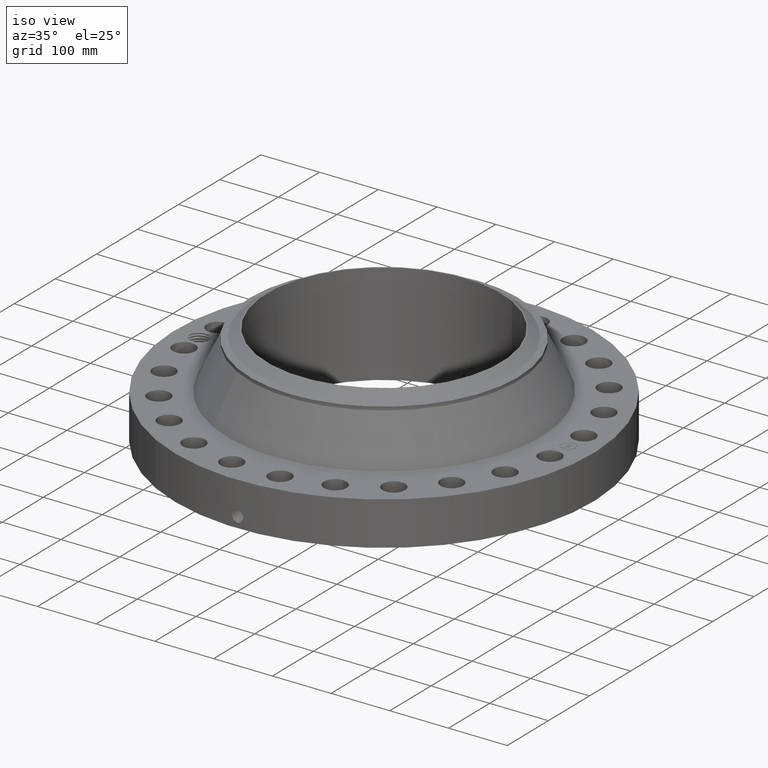
[diagram: clean part render]
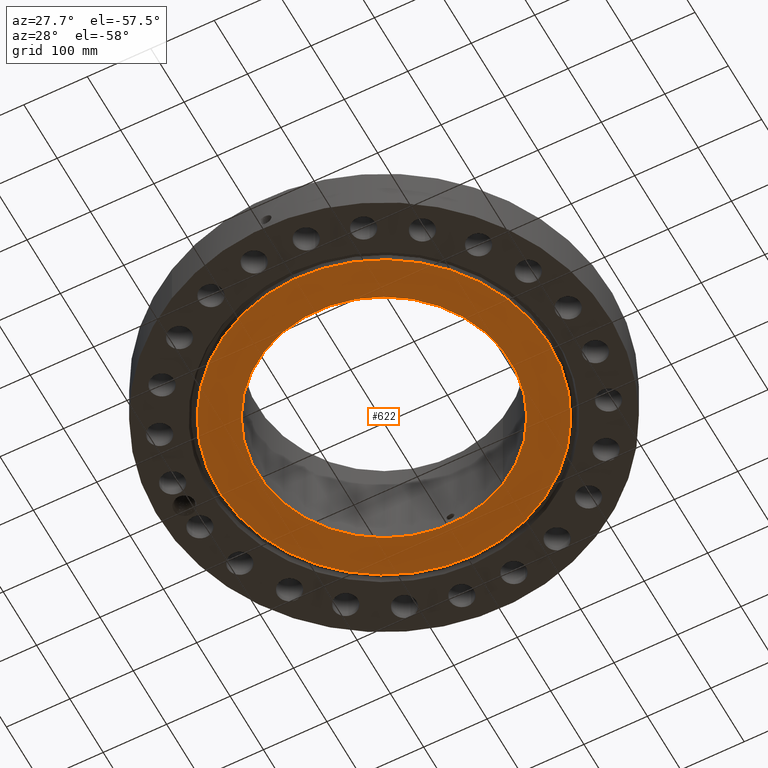
[diagram: tour spotlight — one face highlighted and labeled with its STEP entity id]
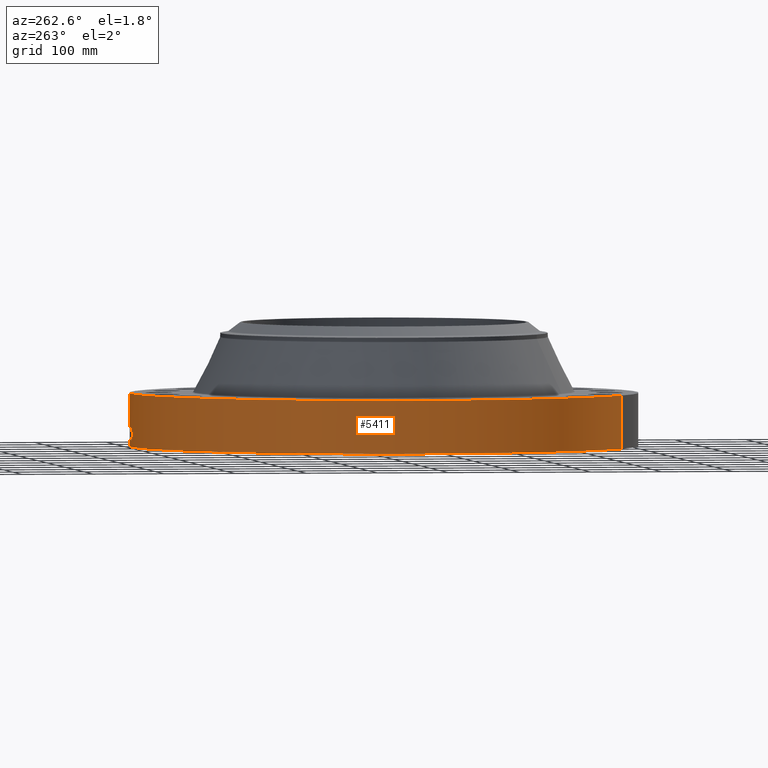
[diagram: tour spotlight — one face highlighted and labeled with its STEP entity id]
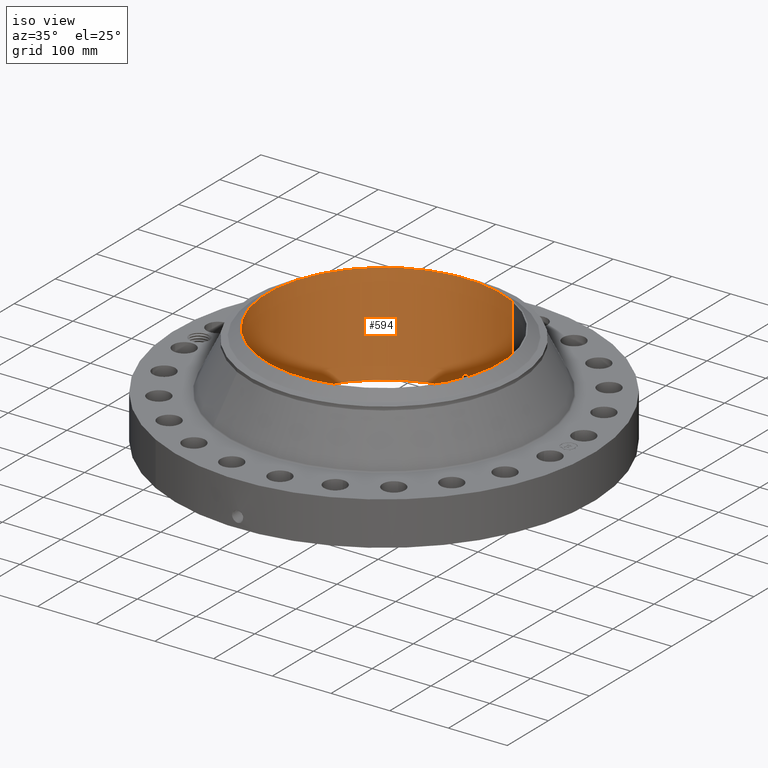
[diagram: tour spotlight — one face highlighted and labeled with its STEP entity id]
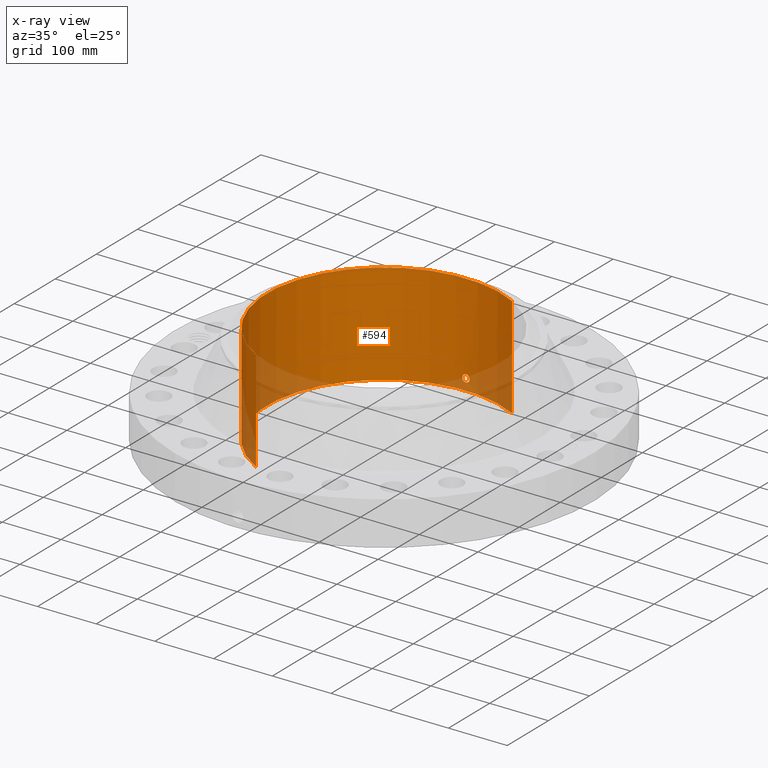
[diagram: x-ray of the same camera — body ghosted, this tour face saturated]
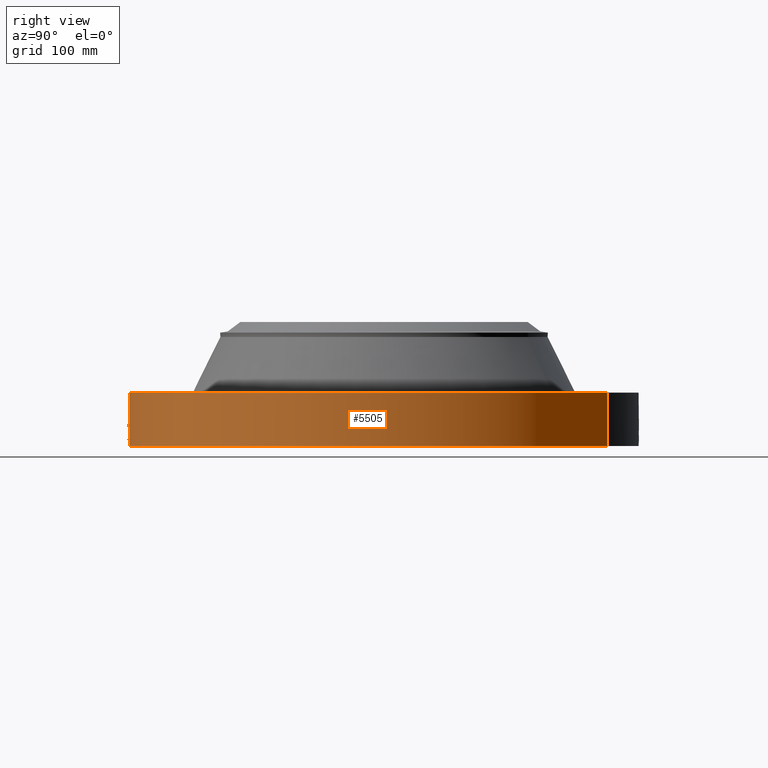
[diagram: tour spotlight — one face highlighted and labeled with its STEP entity id]
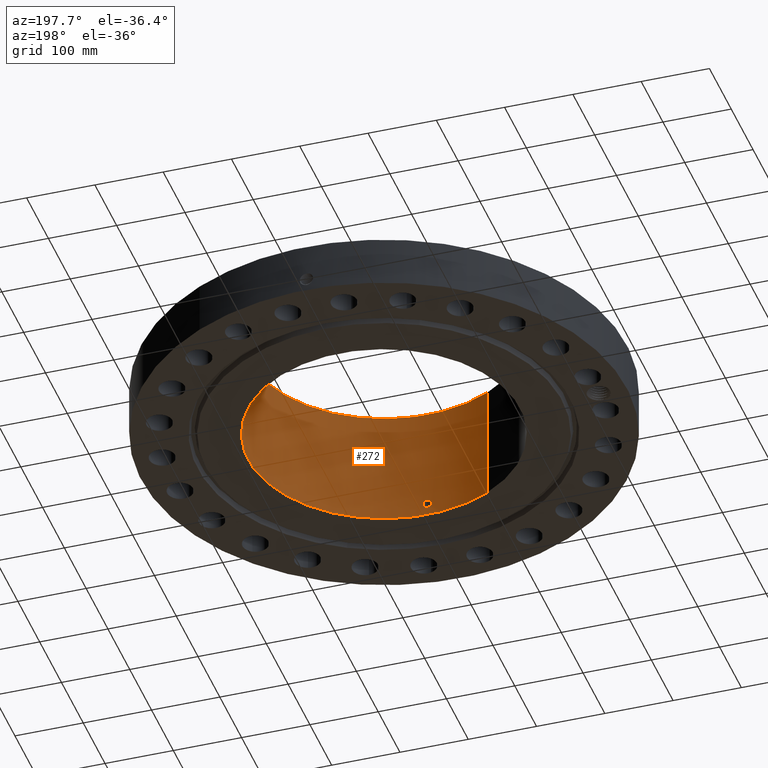
[diagram: tour spotlight — one face highlighted and labeled with its STEP entity id]
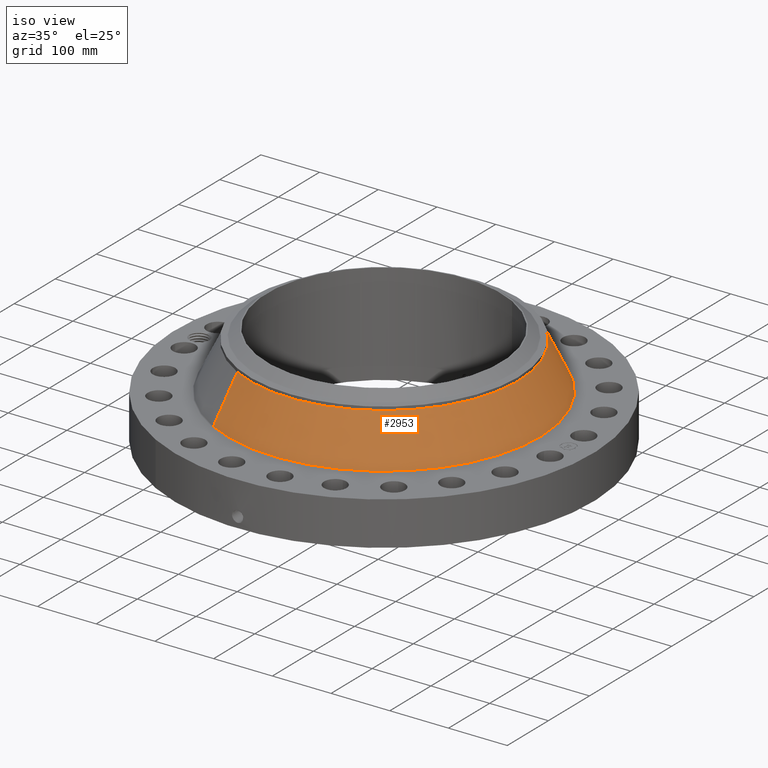
[diagram: tour spotlight — one face highlighted and labeled with its STEP entity id]
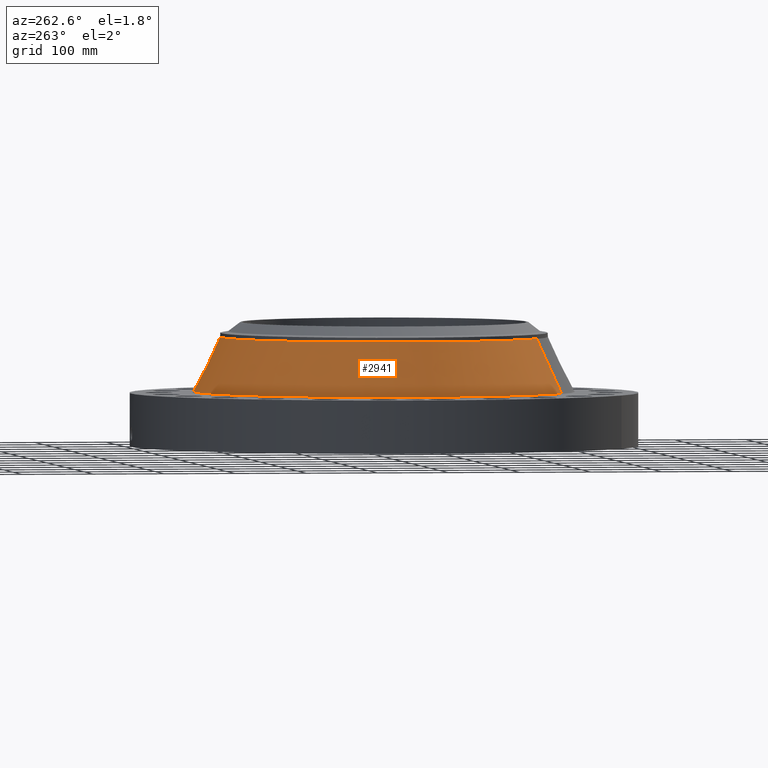
[diagram: tour spotlight — one face highlighted and labeled with its STEP entity id]
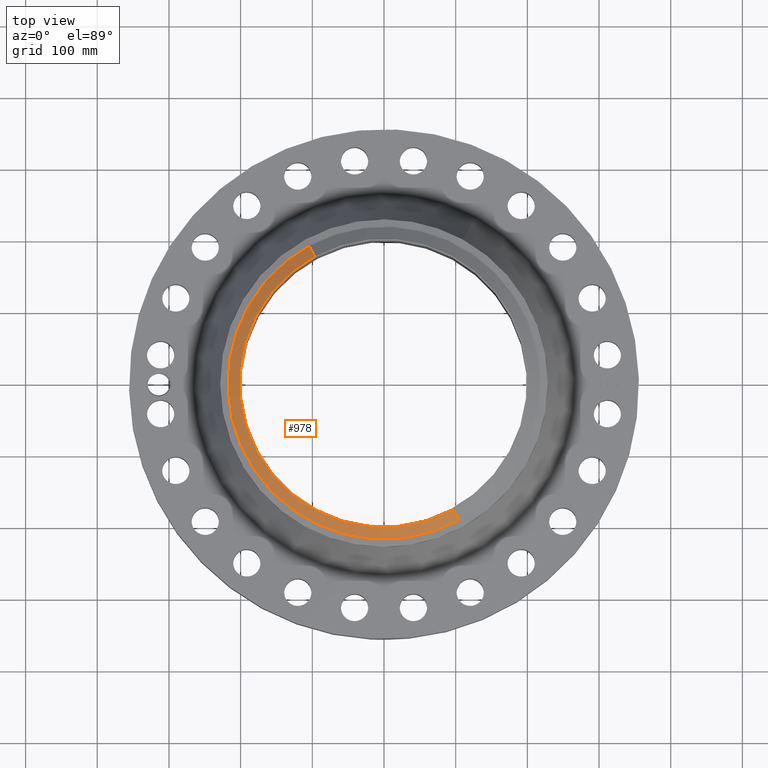
[diagram: tour spotlight — one face highlighted and labeled with its STEP entity id]
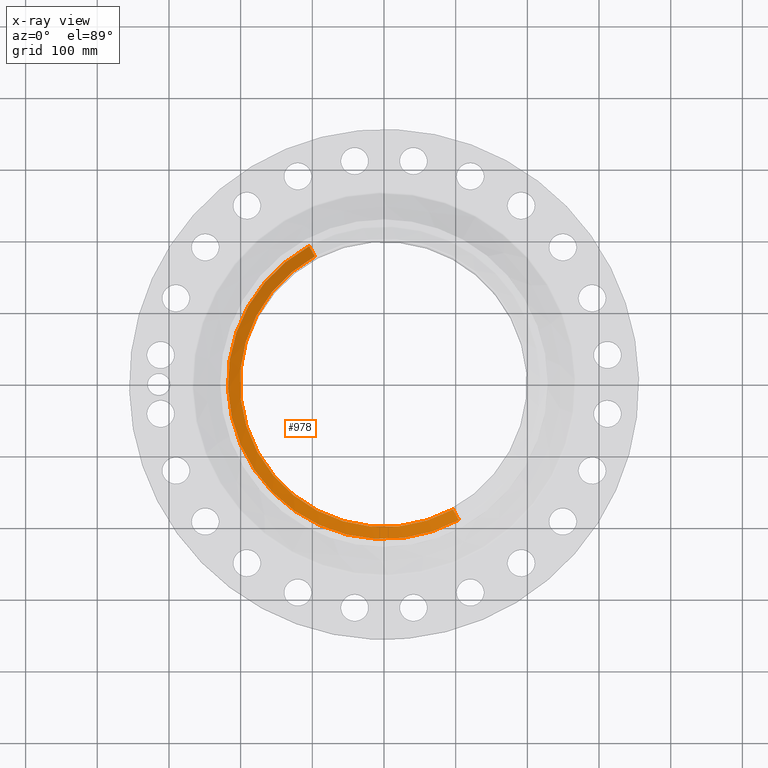
[diagram: x-ray of the same camera — body ghosted, this tour face saturated]
A machine part: a face-by-face anatomy tour. The part has 828 B-rep faces; the first image is the clean iso view, then the 8 largest visible faces are spotlighted one at a time (largest first), each with its STEP entity span.

Face 1 — auxiliary view, entity #622. In plain terms, the highlighted planar face has unit normal (0, 0, -1).
Definition (entity closure, byte-faithful):
#252=AXIS2_PLACEMENT_3D('Circle Axis2P3D',#250,#251,$) ;
#543=AXIS2_PLACEMENT_3D('Circle Axis2P3D',#541,#542,$) ;
#598=AXIS2_PLACEMENT_3D('Plane Axis2P3D',#595,#596,#597) ;
#602=AXIS2_PLACEMENT_3D('Circle Axis2P3D',#600,#601,$) ;
#611=AXIS2_PLACEMENT_3D('Circle Axis2P3D',#609,#610,$) ;
#247=CARTESIAN_POINT('Vertex',(3.76061392483,6.8837576155,-5.31508345647E-014)) ;
#250=CARTESIAN_POINT('Axis2P3D Location',(0.,0.,-5.37103170338E-014)) ;
#254=CARTESIAN_POINT('Vertex',(-3.76061392483,-6.8837576155,-5.31508345647E-014)) ;
#541=CARTESIAN_POINT('Axis2P3D Location',(0.,0.,-5.37103170338E-014)) ;
#595=CARTESIAN_POINT('Axis2P3D Location',(0.,7.84400000003,0.)) ;
#600=CARTESIAN_POINT('Axis2P3D Location',(1.1189649382E-015,0.,0.)) ;
#604=CARTESIAN_POINT('Vertex',(-4.92154286656,9.00882378912,-3.49676543189E-017)) ;
#606=CARTESIAN_POINT('Vertex',(4.92154286656,-9.00882378912,0.)) ;
#609=CARTESIAN_POINT('Axis2P3D Location',(2.23792987641E-015,-1.1189649382E-015,0.)) ;
#251=DIRECTION('Axis2P3D Direction',(0.,0.,-0.0393700787402)) ;
#542=DIRECTION('Axis2P3D Direction',(0.,0.,-0.0393700787402)) ;
#596=DIRECTION('Axis2P3D Direction',(0.,0.,-0.0393700787402)) ;
#597=DIRECTION('Axis2P3D XDirection',(0.0393700787402,0.,0.)) ;
#601=DIRECTION('Axis2P3D Direction',(0.,0.,-0.0393700787402)) ;
#610=DIRECTION('Axis2P3D Direction',(0.,0.,-0.0393700787402)) ;
#615=ORIENTED_EDGE('',*,*,#608,.T.) ;
#616=ORIENTED_EDGE('',*,*,#613,.T.) ;
#619=ORIENTED_EDGE('',*,*,#256,.F.) ;
#620=ORIENTED_EDGE('',*,*,#545,.F.) ;
#621=FACE_BOUND('',#618,.T.) ;
#622=ADVANCED_FACE('PartBody',(#617,#621),#599,.T.) ;
#253=CIRCLE('generated circle',#252,7.84400000003) ;
#544=CIRCLE('generated circle',#543,7.84400000003) ;
#603=CIRCLE('generated circle',#602,10.2655) ;
#612=CIRCLE('generated circle',#611,10.2655) ;
#256=EDGE_CURVE('',#248,#255,#253,.T.) ;
#545=EDGE_CURVE('',#255,#248,#544,.T.) ;
#608=EDGE_CURVE('',#605,#607,#603,.T.) ;
#613=EDGE_CURVE('',#607,#605,#612,.T.) ;
#614=EDGE_LOOP('',(#615,#616)) ;
#618=EDGE_LOOP('',(#619,#620)) ;
#617=FACE_OUTER_BOUND('',#614,.T.) ;
#599=PLANE('',#598) ;
#248=VERTEX_POINT('',#247) ;
#255=VERTEX_POINT('',#254) ;
#605=VERTEX_POINT('',#604) ;
#607=VERTEX_POINT('',#606) ;

Face 2 — auxiliary view, entity #5411. In plain terms, the highlighted cylindrical surface (partial cylindrical patch) has radius 355.6 mm, axis along (0, 0, -1).
Definition (entity closure, byte-faithful):
#3849=AXIS2_PLACEMENT_3D('Circle Axis2P3D',#3847,#3848,$) ;
#4558=AXIS2_PLACEMENT_3D('Circle Axis2P3D',#4556,#4557,$) ;
#5306=AXIS2_PLACEMENT_3D('Cylinder Axis2P3D',#5303,#5304,#5305) ;
#3847=CARTESIAN_POINT('Axis2P3D Location',(0.,0.,0.)) ;
#3851=CARTESIAN_POINT('Vertex',(-6.71195754049,-12.2861558665,1.1189649382E-015)) ;
#3853=CARTESIAN_POINT('Vertex',(6.71195754049,12.2861558665,1.1189649382E-015)) ;
#4551=CARTESIAN_POINT('Vertex',(6.71195754049,12.2861558665,2.93200000001)) ;
#4553=CARTESIAN_POINT('Vertex',(-6.71195754049,-12.2861558665,2.93200000001)) ;
#4556=CARTESIAN_POINT('Axis2P3D Location',(0.,0.,2.93200000001)) ;
#5303=CARTESIAN_POINT('Axis2P3D Location',(0.,0.,3.40600000001)) ;
#5308=CARTESIAN_POINT('Line Origine',(-6.71195754049,-12.2861558665,1.46600000001)) ;
#5313=CARTESIAN_POINT('Line Origine',(6.71195754049,12.2861558665,1.46600000001)) ;
#5325=CARTESIAN_POINT('Control Point',(-0.000716127770021,13.9999999817,1.1041184611)) ;
#5326=CARTESIAN_POINT('Control Point',(-0.0190757983381,13.9999990426,1.10408137441)) ;
#5327=CARTESIAN_POINT('Control Point',(-0.0374322413153,13.9999616996,1.10261237373)) ;
#5328=CARTESIAN_POINT('Control Point',(-0.055563891505,13.9998897373,1.09972937867)) ;
#5329=CARTESIAN_POINT('Vertex',(-0.000715743932358,13.9999999818,1.10411851041)) ;
#5331=CARTESIAN_POINT('Vertex',(-0.0555549451581,13.9998900259,1.09973081964)) ;
#5335=CARTESIAN_POINT('Control Point',(-0.0555548490816,13.9998897731,1.09973026908)) ;
#5336=CARTESIAN_POINT('Control Point',(-0.0958938296652,13.9997296986,1.09526506922)) ;
#5337=CARTESIAN_POINT('Control Point',(-0.13558153614,13.9993911749,1.08345851699)) ;
#5338=CARTESIAN_POINT('Control Point',(-0.172124900836,13.9989418536,1.06510326735)) ;
#5339=CARTESIAN_POINT('Vertex',(-0.172124900836,13.9989418536,1.06510326735)) ;
#5343=CARTESIAN_POINT('Control Point',(-0.0309215004358,13.9999658522,0.341182267607)) ;
#5344=CARTESIAN_POINT('Control Point',(-0.100166394521,13.9998129121,0.349950591882)) ;
#5345=CARTESIAN_POINT('Control Point',(-0.167079203284,13.9992370076,0.374143798892)) ;
#5346=CARTESIAN_POINT('Control Point',(-0.226861916913,13.9983036346,0.412946418718)) ;
#5347=CARTESIAN_POINT('Control Point',(-0.299410362546,13.9968606616,0.486992650629)) ;
#5348=CARTESIAN_POINT('Control Point',(-0.344252863709,13.9957762929,0.577303564864)) ;
#5349=CARTESIAN_POINT('Control Point',(-0.355712949601,13.9954842687,0.60801091681)) ;
#5350=CARTESIAN_POINT('Control Point',(-0.374230289479,13.9950011291,0.67928786997)) ;
#5351=CARTESIAN_POINT('Control Point',(-0.375902039467,13.9949509828,0.752614503321)) ;
#5352=CARTESIAN_POINT('Control Point',(-0.371520179464,13.9950715433,0.793222777658)) ;
#5353=CARTESIAN_POINT('Control Point',(-0.349038361076,13.9956736799,0.885717409818)) ;
#5354=CARTESIAN_POINT('Control Point',(-0.299568268482,13.996842528,0.967115530362)) ;
#5355=CARTESIAN_POINT('Control Point',(-0.263036006055,13.9976212518,1.00806553029)) ;
#5356=CARTESIAN_POINT('Control Point',(-0.219778089764,13.9983559307,1.04116769641)) ;
#5357=CARTESIAN_POINT('Control Point',(-0.172124900836,13.9989418536,1.06510326735)) ;
#5358=CARTESIAN_POINT('Vertex',(-0.0309215004358,13.9999658522,0.341182267607)) ;
#5362=CARTESIAN_POINT('Control Point',(-0.0309215004358,13.9999658522,0.341182267607)) ;
#5363=CARTESIAN_POINT('Control Point',(-0.0206093350718,13.9999886285,0.340873555469)) ;
#5364=CARTESIAN_POINT('Control Point',(-0.0102899336327,14.0000000021,0.340937863188)) ;
#5365=CARTESIAN_POINT('Control Point',(2.72878355401E-006,14.0000000001,0.341374667805)) ;
#5366=CARTESIAN_POINT('Vertex',(2.72878354121E-006,14.0000000001,0.341374667805)) ;
#5370=CARTESIAN_POINT('Control Point',(0.192703589045,13.9986736989,0.39726939377)) ;
#5371=CARTESIAN_POINT('Control Point',(0.149035570211,13.9992748261,0.371955714082)) ;
#5372=CARTESIAN_POINT('Control Point',(0.10112204512,13.9997535108,0.353750407219)) ;
#5373=CARTESIAN_POINT('Control Point',(0.0508078024423,13.9999999902,0.343530755533)) ;
#5374=CARTESIAN_POINT('Control Point',(2.72878355401E-006,14.0000000001,0.341374667805)) ;
#5375=CARTESIAN_POINT('Vertex',(0.192703589045,13.9986736989,0.39726939377)) ;
#5379=CARTESIAN_POINT('Control Point',(0.192703589045,13.9986736989,0.39726939377)) ;
#5380=CARTESIAN_POINT('Control Point',(0.249588141188,13.9978906349,0.430244491957)) ;
#5381=CARTESIAN_POINT('Control Point',(0.299738781431,13.9969112714,0.474526544711)) ;
#5382=CARTESIAN_POINT('Control Point',(0.340016084214,13.9959144375,0.528593013561)) ;
#5383=CARTESIAN_POINT('Control Point',(0.384401903694,13.9947324549,0.626721002343)) ;
#5384=CARTESIAN_POINT('Control Point',(0.393085692121,13.9944790205,0.732012567468)) ;
#5385=CARTESIAN_POINT('Control Point',(0.391005823831,13.9945390528,0.772144914978)) ;
#5386=CARTESIAN_POINT('Control Point',(0.376915952198,13.9949387529,0.84701494525)) ;
#5387=CARTESIAN_POINT('Control Point',(0.344864409284,13.995765604,0.915422587374)) ;
#5388=CARTESIAN_POINT('Control Point',(0.325823254781,13.9962322051,0.945842824164)) ;
#5389=CARTESIAN_POINT('Control Point',(0.264021728227,13.9976173448,1.02245044825)) ;
#5390=CARTESIAN_POINT('Control Point',(0.180761909131,13.998996639,1.07554895628)) ;
#5391=CARTESIAN_POINT('Control Point',(0.121808147223,13.9996739848,1.0976552982)) ;
#5392=CARTESIAN_POINT('Control Point',(0.0604215643591,14.0000001117,1.1071166251)) ;
#5393=CARTESIAN_POINT('Control Point',(-2.58579355713E-005,14.,1.1041529843)) ;
#5394=CARTESIAN_POINT('Vertex',(-2.58579355465E-005,14.,1.1041529843)) ;
#5398=CARTESIAN_POINT('Control Point',(-0.000715743922712,13.9999999818,1.10411851039)) ;
#5399=CARTESIAN_POINT('Control Point',(-0.000370825420103,13.9999999994,1.1041360711)) ;
#5400=CARTESIAN_POINT('Control Point',(-2.58579407E-005,14.,1.1041529843)) ;
#3848=DIRECTION('Axis2P3D Direction',(0.,0.,-0.0393700787402)) ;
#4557=DIRECTION('Axis2P3D Direction',(0.,0.,-0.0393700787402)) ;
#5304=DIRECTION('Axis2P3D Direction',(0.,0.,-0.0393700787402)) ;
#5305=DIRECTION('Axis2P3D XDirection',(0.0188750212049,0.0345504945626,0.)) ;
#5309=DIRECTION('Vector Direction',(0.,0.,-0.0393700787402)) ;
#5314=DIRECTION('Vector Direction',(0.,0.,-0.0393700787402)) ;
#5310=VECTOR('Line Direction',#5309,0.0393700787402) ;
#5315=VECTOR('Line Direction',#5314,0.0393700787402) ;
#5319=ORIENTED_EDGE('',*,*,#3855,.F.) ;
#5320=ORIENTED_EDGE('',*,*,#5312,.T.) ;
#5321=ORIENTED_EDGE('',*,*,#4560,.T.) ;
#5322=ORIENTED_EDGE('',*,*,#5317,.F.) ;
#5403=ORIENTED_EDGE('',*,*,#5333,.T.) ;
#5404=ORIENTED_EDGE('',*,*,#5341,.T.) ;
#5405=ORIENTED_EDGE('',*,*,#5360,.F.) ;
#5406=ORIENTED_EDGE('',*,*,#5368,.T.) ;
#5407=ORIENTED_EDGE('',*,*,#5377,.F.) ;
#5408=ORIENTED_EDGE('',*,*,#5396,.T.) ;
#5409=ORIENTED_EDGE('',*,*,#5401,.F.) ;
#5410=FACE_BOUND('',#5402,.T.) ;
#5411=ADVANCED_FACE('PartBody',(#5323,#5410),#5307,.T.) ;
#5324=B_SPLINE_CURVE_WITH_KNOTS('',3,(#5325,#5326,#5327,#5328),.UNSPECIFIED.,.F.,.U.,(4,4),(34.6165208605,36.6533523258),.UNSPECIFIED.) ;
#5334=B_SPLINE_CURVE_WITH_KNOTS('',3,(#5335,#5336,#5337,#5338),.UNSPECIFIED.,.F.,.U.,(4,4),(0.,4.56032481919),.UNSPECIFIED.) ;
#5342=B_SPLINE_CURVE_WITH_KNOTS('',5,(#5343,#5344,#5345,#5346,#5347,#5348,#5349,#5350,#5351,#5352,#5353,#5354,#5355,#5356,#5357),.UNSPECIFIED.,.F.,.U.,(6,3,3,3,6),(0.,12.1301119272,17.9857306517,25.3556969011,35.2669365049),.UNSPECIFIED.) ;
#5361=B_SPLINE_CURVE_WITH_KNOTS('',3,(#5362,#5363,#5364,#5365),.UNSPECIFIED.,.F.,.U.,(4,4),(0.,1.0757036039),.UNSPECIFIED.) ;
#5369=B_SPLINE_CURVE_WITH_KNOTS('',4,(#5370,#5371,#5372,#5373,#5374),.UNSPECIFIED.,.F.,.U.,(5,5),(0.,7.0796325345),.UNSPECIFIED.) ;
#5378=B_SPLINE_CURVE_WITH_KNOTS('',5,(#5379,#5380,#5381,#5382,#5383,#5384,#5385,#5386,#5387,#5388,#5389,#5390,#5391,#5392,#5393),.UNSPECIFIED.,.F.,.U.,(6,3,3,3,6),(0.,11.5279364619,18.5943609841,25.0081378935,36.3070156025),.UNSPECIFIED.) ;
#5397=B_SPLINE_CURVE_WITH_KNOTS('',2,(#5398,#5399,#5400),.UNSPECIFIED.,.F.,.U.,(3,3),(1.02463481524,1.05042744884),.UNSPECIFIED.) ;
#3850=CIRCLE('generated circle',#3849,14.0000000001) ;
#4559=CIRCLE('generated circle',#4558,14.0000000001) ;
#5307=CYLINDRICAL_SURFACE('generated cylinder',#5306,14.0000000001) ;
#3855=EDGE_CURVE('',#3852,#3854,#3850,.T.) ;
#4560=EDGE_CURVE('',#4554,#4552,#4559,.T.) ;
#5312=EDGE_CURVE('',#3852,#4554,#5311,.F.) ;
#5317=EDGE_CURVE('',#3854,#4552,#5316,.F.) ;
#5333=EDGE_CURVE('',#5330,#5332,#5324,.T.) ;
#5341=EDGE_CURVE('',#5332,#5340,#5334,.T.) ;
#5360=EDGE_CURVE('',#5359,#5340,#5342,.T.) ;
#5368=EDGE_CURVE('',#5359,#5367,#5361,.T.) ;
#5377=EDGE_CURVE('',#5376,#5367,#5369,.T.) ;
#5396=EDGE_CURVE('',#5376,#5395,#5378,.T.) ;
#5401=EDGE_CURVE('',#5330,#5395,#5397,.T.) ;
#5318=EDGE_LOOP('',(#5319,#5320,#5321,#5322)) ;
#5402=EDGE_LOOP('',(#5403,#5404,#5405,#5406,#5407,#5408,#5409)) ;
#5323=FACE_OUTER_BOUND('',#5318,.T.) ;
#5311=LINE('Line',#5308,#5310) ;
#5316=LINE('Line',#5313,#5315) ;
#3852=VERTEX_POINT('',#3851) ;
#3854=VERTEX_POINT('',#3853) ;
#4552=VERTEX_POINT('',#4551) ;
#4554=VERTEX_POINT('',#4553) ;
#5330=VERTEX_POINT('',#5329) ;
#5332=VERTEX_POINT('',#5331) ;
#5340=VERTEX_POINT('',#5339) ;
#5359=VERTEX_POINT('',#5358) ;
#5367=VERTEX_POINT('',#5366) ;
#5376=VERTEX_POINT('',#5375) ;
#5395=VERTEX_POINT('',#5394) ;

Face 3 — iso view, entity #594. An x-ray twin of the same camera follows (body ghosted, this face saturated) — the face is partly hidden behind the body. In plain terms, the highlighted cylindrical surface (partial cylindrical patch) has radius 199.238 mm, axis along (0, 0, -1).
Definition (entity closure, byte-faithful):
#232=AXIS2_PLACEMENT_3D('Cylinder Axis2P3D',#229,#230,#231) ;
#533=AXIS2_PLACEMENT_3D('Circle Axis2P3D',#531,#532,$) ;
#543=AXIS2_PLACEMENT_3D('Circle Axis2P3D',#541,#542,$) ;
#229=CARTESIAN_POINT('Axis2P3D Location',(0.,0.,3.40600000001)) ;
#238=CARTESIAN_POINT('Vertex',(3.76061392483,6.8837576155,6.81200000003)) ;
#240=CARTESIAN_POINT('Vertex',(-3.76061392483,-6.8837576155,6.81200000003)) ;
#243=CARTESIAN_POINT('Line Origine',(3.76061392483,6.8837576155,3.40600000001)) ;
#247=CARTESIAN_POINT('Vertex',(3.76061392483,6.8837576155,-5.31508345647E-014)) ;
#254=CARTESIAN_POINT('Vertex',(-3.76061392483,-6.8837576155,-5.31508345647E-014)) ;
#257=CARTESIAN_POINT('Line Origine',(-3.76061392483,-6.8837576155,3.40600000001)) ;
#531=CARTESIAN_POINT('Axis2P3D Location',(0.,0.,6.81200000003)) ;
#541=CARTESIAN_POINT('Axis2P3D Location',(0.,0.,-5.37103170338E-014)) ;
#553=CARTESIAN_POINT('Control Point',(0.219395640473,7.84093116622,0.869856384655)) ;
#554=CARTESIAN_POINT('Control Point',(0.194443281247,7.84162935356,0.915531371847)) ;
#555=CARTESIAN_POINT('Control Point',(0.157606371525,7.84256074456,0.954710148822)) ;
#556=CARTESIAN_POINT('Control Point',(0.111110848151,7.84346651512,0.983241898809)) ;
#557=CARTESIAN_POINT('Control Point',(0.0336769109748,7.8441871941,1.00588206665)) ;
#558=CARTESIAN_POINT('Control Point',(-0.0446672312369,7.84393819326,0.998056899284)) ;
#559=CARTESIAN_POINT('Control Point',(-0.0702959035817,7.84374488933,0.992044969884)) ;
#560=CARTESIAN_POINT('Control Point',(-0.143950689609,7.84289063034,0.964215402356)) ;
#561=CARTESIAN_POINT('Control Point',(-0.20323737664,7.84149615471,0.90950521058)) ;
#562=CARTESIAN_POINT('Control Point',(-0.232204167424,7.840581429,0.863269241624)) ;
#563=CARTESIAN_POINT('Control Point',(-0.255839574978,7.83982932625,0.785121259903)) ;
#564=CARTESIAN_POINT('Control Point',(-0.24828443845,7.84006954017,0.705753536373)) ;
#565=CARTESIAN_POINT('Control Point',(-0.242050622479,7.84027062564,0.679188391268)) ;
#566=CARTESIAN_POINT('Control Point',(-0.23231649396,7.84056963022,0.653795079013)) ;
#567=CARTESIAN_POINT('Control Point',(-0.219395640473,7.84093116622,0.630143615351)) ;
#568=CARTESIAN_POINT('Vertex',(0.219395640473,7.84093116622,0.869856384655)) ;
#570=CARTESIAN_POINT('Vertex',(-0.219395640473,7.84093116622,0.630143615351)) ;
#574=CARTESIAN_POINT('Control Point',(-0.219395640474,7.84093116622,0.630143615351)) ;
#575=CARTESIAN_POINT('Control Point',(-0.194443281254,7.84162935356,0.584468628172)) ;
#576=CARTESIAN_POINT('Control Point',(-0.157606371546,7.84256074456,0.545289851207)) ;
#577=CARTESIAN_POINT('Control Point',(-0.111110848118,7.84346651512,0.516758101187)) ;
#578=CARTESIAN_POINT('Control Point',(-0.0336769109438,7.8441871941,0.494117933358)) ;
#579=CARTESIAN_POINT('Control Point',(0.0446672312653,7.84393819326,0.501943100725)) ;
#580=CARTESIAN_POINT('Control Point',(0.070295903562,7.84374488933,0.507955030114)) ;
#581=CARTESIAN_POINT('Control Point',(0.143950689564,7.84289063034,0.535784597629)) ;
#582=CARTESIAN_POINT('Control Point',(0.203237376582,7.84149615471,0.590494789372)) ;
#583=CARTESIAN_POINT('Control Point',(0.23220416745,7.840581429,0.636730758464)) ;
#584=CARTESIAN_POINT('Control Point',(0.255839574974,7.83982932625,0.714878740146)) ;
#585=CARTESIAN_POINT('Control Point',(0.248284438449,7.84006954017,0.794246463636)) ;
#586=CARTESIAN_POINT('Control Point',(0.242050622479,7.84027062564,0.82081160874)) ;
#587=CARTESIAN_POINT('Control Point',(0.23231649396,7.84056963022,0.846204920994)) ;
#588=CARTESIAN_POINT('Control Point',(0.219395640473,7.84093116622,0.869856384655)) ;
#230=DIRECTION('Axis2P3D Direction',(0.,0.,-0.0393700787402)) ;
#231=DIRECTION('Axis2P3D XDirection',(-0.0188750212049,-0.0345504945626,0.)) ;
#244=DIRECTION('Vector Direction',(0.,0.,-0.0393700787402)) ;
#258=DIRECTION('Vector Direction',(0.,0.,-0.0393700787402)) ;
#532=DIRECTION('Axis2P3D Direction',(0.,0.,-0.0393700787402)) ;
#542=DIRECTION('Axis2P3D Direction',(0.,0.,-0.0393700787402)) ;
#245=VECTOR('Line Direction',#244,0.0393700787402) ;
#259=VECTOR('Line Direction',#258,0.0393700787402) ;
#547=ORIENTED_EDGE('',*,*,#535,.F.) ;
#548=ORIENTED_EDGE('',*,*,#261,.T.) ;
#549=ORIENTED_EDGE('',*,*,#545,.T.) ;
#550=ORIENTED_EDGE('',*,*,#249,.F.) ;
#591=ORIENTED_EDGE('',*,*,#572,.F.) ;
#592=ORIENTED_EDGE('',*,*,#589,.F.) ;
#593=FACE_BOUND('',#590,.T.) ;
#594=ADVANCED_FACE('PartBody',(#551,#593),#233,.F.) ;
#552=B_SPLINE_CURVE_WITH_KNOTS('',5,(#553,#554,#555,#556,#557,#558,#559,#560,#561,#562,#563,#564,#565,#566,#567),.UNSPECIFIED.,.F.,.U.,(6,3,3,3,6),(0.,9.34863580346,14.0227685147,23.3727984382,28.213717584),.UNSPECIFIED.) ;
#573=B_SPLINE_CURVE_WITH_KNOTS('',5,(#574,#575,#576,#577,#578,#579,#580,#581,#582,#583,#584,#585,#586,#587,#588),.UNSPECIFIED.,.F.,.U.,(6,3,3,3,6),(0.,9.34863580076,14.0227685142,23.3727984305,28.2137175763),.UNSPECIFIED.) ;
#534=CIRCLE('generated circle',#533,7.84400000003) ;
#544=CIRCLE('generated circle',#543,7.84400000003) ;
#233=CYLINDRICAL_SURFACE('generated cylinder',#232,7.84400000003) ;
#249=EDGE_CURVE('',#239,#248,#246,.T.) ;
#261=EDGE_CURVE('',#241,#255,#260,.T.) ;
#535=EDGE_CURVE('',#241,#239,#534,.T.) ;
#545=EDGE_CURVE('',#255,#248,#544,.T.) ;
#572=EDGE_CURVE('',#569,#571,#552,.T.) ;
#589=EDGE_CURVE('',#571,#569,#573,.T.) ;
#546=EDGE_LOOP('',(#547,#548,#549,#550)) ;
#590=EDGE_LOOP('',(#591,#592)) ;
#551=FACE_OUTER_BOUND('',#546,.T.) ;
#246=LINE('Line',#243,#245) ;
#260=LINE('Line',#257,#259) ;
#239=VERTEX_POINT('',#238) ;
#241=VERTEX_POINT('',#240) ;
#248=VERTEX_POINT('',#247) ;
#255=VERTEX_POINT('',#254) ;
#569=VERTEX_POINT('',#568) ;
#571=VERTEX_POINT('',#570) ;

Face 4 — right view, entity #5505. In plain terms, the highlighted cylindrical surface (partial cylindrical patch) has radius 355.6 mm, axis along (0, 0, -1).
Definition (entity closure, byte-faithful):
#3858=AXIS2_PLACEMENT_3D('Circle Axis2P3D',#3856,#3857,$) ;
#4549=AXIS2_PLACEMENT_3D('Circle Axis2P3D',#4547,#4548,$) ;
#5306=AXIS2_PLACEMENT_3D('Cylinder Axis2P3D',#5303,#5304,#5305) ;
#3851=CARTESIAN_POINT('Vertex',(-6.71195754049,-12.2861558665,1.1189649382E-015)) ;
#3853=CARTESIAN_POINT('Vertex',(6.71195754049,12.2861558665,1.1189649382E-015)) ;
#3856=CARTESIAN_POINT('Axis2P3D Location',(0.,0.,0.)) ;
#4547=CARTESIAN_POINT('Axis2P3D Location',(0.,0.,2.93200000001)) ;
#4551=CARTESIAN_POINT('Vertex',(6.71195754049,12.2861558665,2.93200000001)) ;
#4553=CARTESIAN_POINT('Vertex',(-6.71195754049,-12.2861558665,2.93200000001)) ;
#5303=CARTESIAN_POINT('Axis2P3D Location',(0.,0.,3.40600000001)) ;
#5308=CARTESIAN_POINT('Line Origine',(-6.71195754049,-12.2861558665,1.46600000001)) ;
#5313=CARTESIAN_POINT('Line Origine',(6.71195754049,12.2861558665,1.46600000001)) ;
#5419=CARTESIAN_POINT('Control Point',(0.000716127770044,-13.9999999817,1.1041184611)) ;
#5420=CARTESIAN_POINT('Control Point',(0.0190757983388,-13.9999990426,1.10408137441)) ;
#5421=CARTESIAN_POINT('Control Point',(0.0374322413167,-13.9999616996,1.10261237373)) ;
#5422=CARTESIAN_POINT('Control Point',(0.0555638915056,-13.9998897373,1.09972937867)) ;
#5423=CARTESIAN_POINT('Vertex',(0.000715743932356,-13.9999999818,1.10411851041)) ;
#5425=CARTESIAN_POINT('Vertex',(0.0555549451581,-13.9998900259,1.09973081964)) ;
#5429=CARTESIAN_POINT('Control Point',(0.0555548490815,-13.9998897731,1.09973026908)) ;
#5430=CARTESIAN_POINT('Control Point',(0.0958938296584,-13.9997296986,1.09526506922)) ;
#5431=CARTESIAN_POINT('Control Point',(0.135581536146,-13.9993911749,1.08345851699)) ;
#5432=CARTESIAN_POINT('Control Point',(0.172124900836,-13.9989418536,1.06510326735)) ;
#5433=CARTESIAN_POINT('Vertex',(0.172124900836,-13.9989418536,1.06510326735)) ;
#5437=CARTESIAN_POINT('Control Point',(0.0309215004358,-13.9999658522,0.341182267607)) ;
#5438=CARTESIAN_POINT('Control Point',(0.1001663945,-13.9998129121,0.34995059188)) ;
#5439=CARTESIAN_POINT('Control Point',(0.167079203243,-13.9992370076,0.374143798871)) ;
#5440=CARTESIAN_POINT('Control Point',(0.226861917017,-13.9983036346,0.41294641881)) ;
#5441=CARTESIAN_POINT('Control Point',(0.299410362615,-13.9968606616,0.486992650724)) ;
#5442=CARTESIAN_POINT('Control Point',(0.344252863745,-13.9957762929,0.577303564952)) ;
#5443=CARTESIAN_POINT('Control Point',(0.35571294963,-13.9954842687,0.608010916899)) ;
#5444=CARTESIAN_POINT('Control Point',(0.374230289492,-13.9950011291,0.679287870065)) ;
#5445=CARTESIAN_POINT('Control Point',(0.375902039462,-13.9949509828,0.752614503417)) ;
#5446=CARTESIAN_POINT('Control Point',(0.371520179449,-13.9950715433,0.793222777749)) ;
#5447=CARTESIAN_POINT('Control Point',(0.349038361039,-13.9956736799,0.885717409904)) ;
#5448=CARTESIAN_POINT('Control Point',(0.299568268425,-13.996842528,0.967115530438)) ;
#5449=CARTESIAN_POINT('Control Point',(0.263036006056,-13.9976212518,1.00806553029)) ;
#5450=CARTESIAN_POINT('Control Point',(0.219778089765,-13.9983559307,1.04116769641)) ;
#5451=CARTESIAN_POINT('Control Point',(0.172124900836,-13.9989418536,1.06510326735)) ;
#5452=CARTESIAN_POINT('Vertex',(0.0309215004358,-13.9999658522,0.341182267607)) ;
#5456=CARTESIAN_POINT('Control Point',(0.0309215004358,-13.9999658522,0.341182267607)) ;
#5457=CARTESIAN_POINT('Control Point',(0.0206093350718,-13.9999886285,0.340873555469)) ;
#5458=CARTESIAN_POINT('Control Point',(0.0102899336327,-14.0000000021,0.340937863188)) ;
#5459=CARTESIAN_POINT('Control Point',(-2.72878356816E-006,-14.0000000001,0.341374667805)) ;
#5460=CARTESIAN_POINT('Vertex',(-2.72878354299E-006,-14.0000000001,0.341374667805)) ;
#5464=CARTESIAN_POINT('Control Point',(-0.192703589045,-13.9986736989,0.39726939377)) ;
#5465=CARTESIAN_POINT('Control Point',(-0.149035570211,-13.9992748261,0.371955714082)) ;
#5466=CARTESIAN_POINT('Control Point',(-0.10112204512,-13.9997535108,0.35375040722)) ;
#5467=CARTESIAN_POINT('Control Point',(-0.0508078024423,-13.9999999902,0.343530755533)) ;
#5468=CARTESIAN_POINT('Control Point',(-2.72878354327E-006,-14.0000000001,0.341374667805)) ;
#5469=CARTESIAN_POINT('Vertex',(-0.192703589045,-13.9986736989,0.39726939377)) ;
#5473=CARTESIAN_POINT('Control Point',(-0.192703589045,-13.9986736989,0.39726939377)) ;
#5474=CARTESIAN_POINT('Control Point',(-0.24958814117,-13.9978906349,0.430244491947)) ;
#5475=CARTESIAN_POINT('Control Point',(-0.2997387814,-13.9969112714,0.474526544684)) ;
#5476=CARTESIAN_POINT('Control Point',(-0.340016084229,-13.9959144375,0.528593013595)) ;
#5477=CARTESIAN_POINT('Control Point',(-0.384401903664,-13.9947324549,0.626721002292)) ;
#5478=CARTESIAN_POINT('Control Point',(-0.393085692109,-13.9944790205,0.73201256732)) ;
#5479=CARTESIAN_POINT('Control Point',(-0.391005823805,-13.9945390528,0.772144915115)) ;
#5480=CARTESIAN_POINT('Control Point',(-0.376915952154,-13.9949387529,0.847014945386)) ;
#5481=CARTESIAN_POINT('Control Point',(-0.344864409222,-13.995765604,0.915422587508)) ;
#5482=CARTESIAN_POINT('Control Point',(-0.325823254877,-13.9962322051,0.945842824043)) ;
#5483=CARTESIAN_POINT('Control Point',(-0.264021728287,-13.9976173448,1.02245044822)) ;
#5484=CARTESIAN_POINT('Control Point',(-0.180761909115,-13.998996639,1.07554895629)) ;
#5485=CARTESIAN_POINT('Control Point',(-0.121808147245,-13.9996739848,1.0976552982)) ;
#5486=CARTESIAN_POINT('Control Point',(-0.0604215643699,-14.0000001117,1.1071166251)) ;
#5487=CARTESIAN_POINT('Control Point',(2.58579355447E-005,-14.,1.1041529843)) ;
#5488=CARTESIAN_POINT('Vertex',(2.58579355449E-005,-14.,1.1041529843)) ;
#5492=CARTESIAN_POINT('Control Point',(0.000715743922683,-13.9999999818,1.10411851039)) ;
#5493=CARTESIAN_POINT('Control Point',(0.000370825420083,-13.9999999994,1.1041360711)) ;
#5494=CARTESIAN_POINT('Control Point',(2.58579406887E-005,-14.,1.1041529843)) ;
#3857=DIRECTION('Axis2P3D Direction',(0.,0.,-0.0393700787402)) ;
#4548=DIRECTION('Axis2P3D Direction',(0.,0.,-0.0393700787402)) ;
#5304=DIRECTION('Axis2P3D Direction',(0.,0.,-0.0393700787402)) ;
#5305=DIRECTION('Axis2P3D XDirection',(0.0188750212049,0.0345504945626,0.)) ;
#5309=DIRECTION('Vector Direction',(0.,0.,-0.0393700787402)) ;
#5314=DIRECTION('Vector Direction',(0.,0.,-0.0393700787402)) ;
#5310=VECTOR('Line Direction',#5309,0.0393700787402) ;
#5315=VECTOR('Line Direction',#5314,0.0393700787402) ;
#5413=ORIENTED_EDGE('',*,*,#3860,.F.) ;
#5414=ORIENTED_EDGE('',*,*,#5317,.T.) ;
#5415=ORIENTED_EDGE('',*,*,#4555,.T.) ;
#5416=ORIENTED_EDGE('',*,*,#5312,.F.) ;
#5497=ORIENTED_EDGE('',*,*,#5427,.T.) ;
#5498=ORIENTED_EDGE('',*,*,#5435,.T.) ;
#5499=ORIENTED_EDGE('',*,*,#5454,.F.) ;
#5500=ORIENTED_EDGE('',*,*,#5462,.T.) ;
#5501=ORIENTED_EDGE('',*,*,#5471,.F.) ;
#5502=ORIENTED_EDGE('',*,*,#5490,.T.) ;
#5503=ORIENTED_EDGE('',*,*,#5495,.F.) ;
#5504=FACE_BOUND('',#5496,.T.) ;
#5505=ADVANCED_FACE('PartBody',(#5417,#5504),#5307,.T.) ;
#5418=B_SPLINE_CURVE_WITH_KNOTS('',3,(#5419,#5420,#5421,#5422),.UNSPECIFIED.,.F.,.U.,(4,4),(34.6165208838,36.6533523492),.UNSPECIFIED.) ;
#5428=B_SPLINE_CURVE_WITH_KNOTS('',3,(#5429,#5430,#5431,#5432),.UNSPECIFIED.,.F.,.U.,(4,4),(0.,4.56032481842),.UNSPECIFIED.) ;
#5436=B_SPLINE_CURVE_WITH_KNOTS('',5,(#5437,#5438,#5439,#5440,#5441,#5442,#5443,#5444,#5445,#5446,#5447,#5448,#5449,#5450,#5451),.UNSPECIFIED.,.F.,.U.,(6,3,3,3,6),(0.,12.1301119235,17.985730648,25.3556968976,35.2669365016),.UNSPECIFIED.) ;
#5455=B_SPLINE_CURVE_WITH_KNOTS('',3,(#5456,#5457,#5458,#5459),.UNSPECIFIED.,.F.,.U.,(4,4),(0.,1.0757036039),.UNSPECIFIED.) ;
#5463=B_SPLINE_CURVE_WITH_KNOTS('',4,(#5464,#5465,#5466,#5467,#5468),.UNSPECIFIED.,.F.,.U.,(5,5),(0.,7.0796325345),.UNSPECIFIED.) ;
#5472=B_SPLINE_CURVE_WITH_KNOTS('',5,(#5473,#5474,#5475,#5476,#5477,#5478,#5479,#5480,#5481,#5482,#5483,#5484,#5485,#5486,#5487),.UNSPECIFIED.,.F.,.U.,(6,3,3,3,6),(0.,11.5279364583,18.5943609677,25.0081378906,36.3070156017),.UNSPECIFIED.) ;
#5491=B_SPLINE_CURVE_WITH_KNOTS('',2,(#5492,#5493,#5494),.UNSPECIFIED.,.F.,.U.,(3,3),(1.02463481524,1.05042744884),.UNSPECIFIED.) ;
#3859=CIRCLE('generated circle',#3858,14.0000000001) ;
#4550=CIRCLE('generated circle',#4549,14.0000000001) ;
#5307=CYLINDRICAL_SURFACE('generated cylinder',#5306,14.0000000001) ;
#3860=EDGE_CURVE('',#3854,#3852,#3859,.T.) ;
#4555=EDGE_CURVE('',#4552,#4554,#4550,.T.) ;
#5312=EDGE_CURVE('',#3852,#4554,#5311,.F.) ;
#5317=EDGE_CURVE('',#3854,#4552,#5316,.F.) ;
#5427=EDGE_CURVE('',#5424,#5426,#5418,.T.) ;
#5435=EDGE_CURVE('',#5426,#5434,#5428,.T.) ;
#5454=EDGE_CURVE('',#5453,#5434,#5436,.T.) ;
#5462=EDGE_CURVE('',#5453,#5461,#5455,.T.) ;
#5471=EDGE_CURVE('',#5470,#5461,#5463,.T.) ;
#5490=EDGE_CURVE('',#5470,#5489,#5472,.T.) ;
#5495=EDGE_CURVE('',#5424,#5489,#5491,.T.) ;
#5412=EDGE_LOOP('',(#5413,#5414,#5415,#5416)) ;
#5496=EDGE_LOOP('',(#5497,#5498,#5499,#5500,#5501,#5502,#5503)) ;
#5417=FACE_OUTER_BOUND('',#5412,.T.) ;
#5311=LINE('Line',#5308,#5310) ;
#5316=LINE('Line',#5313,#5315) ;
#3852=VERTEX_POINT('',#3851) ;
#3854=VERTEX_POINT('',#3853) ;
#4552=VERTEX_POINT('',#4551) ;
#4554=VERTEX_POINT('',#4553) ;
#5424=VERTEX_POINT('',#5423) ;
#5426=VERTEX_POINT('',#5425) ;
#5434=VERTEX_POINT('',#5433) ;
#5453=VERTEX_POINT('',#5452) ;
#5461=VERTEX_POINT('',#5460) ;
#5470=VERTEX_POINT('',#5469) ;
#5489=VERTEX_POINT('',#5488) ;

Face 5 — auxiliary view, entity #272. In plain terms, the highlighted cylindrical surface (partial cylindrical patch) has radius 199.238 mm, axis along (0, 0, -1).
Definition (entity closure, byte-faithful):
#232=AXIS2_PLACEMENT_3D('Cylinder Axis2P3D',#229,#230,#231) ;
#236=AXIS2_PLACEMENT_3D('Circle Axis2P3D',#234,#235,$) ;
#252=AXIS2_PLACEMENT_3D('Circle Axis2P3D',#250,#251,$) ;
#81=CARTESIAN_POINT('Control Point',(0.219395640473,-7.84093116622,0.630143615351)) ;
#82=CARTESIAN_POINT('Control Point',(0.194443281265,-7.84162935356,0.584468628192)) ;
#83=CARTESIAN_POINT('Control Point',(0.157606335349,-7.84256074254,0.545289785085)) ;
#84=CARTESIAN_POINT('Control Point',(0.11111077288,-7.84346651497,0.516758098976)) ;
#85=CARTESIAN_POINT('Control Point',(0.0336769487182,-7.84418719417,0.494117934507)) ;
#86=CARTESIAN_POINT('Control Point',(-0.044667249945,-7.84393819323,0.501943100136)) ;
#87=CARTESIAN_POINT('Control Point',(-0.0702959200704,-7.84374488983,0.507955038974)) ;
#88=CARTESIAN_POINT('Control Point',(-0.143950656277,-7.84289062935,0.535784579799)) ;
#89=CARTESIAN_POINT('Control Point',(-0.203237443076,-7.84149615671,0.59049482492)) ;
#90=CARTESIAN_POINT('Control Point',(-0.232204170314,-7.84058142919,0.636730833619)) ;
#91=CARTESIAN_POINT('Control Point',(-0.255839573448,-7.83982932616,0.714878700982)) ;
#92=CARTESIAN_POINT('Control Point',(-0.248284439254,-7.84006954022,0.794246483834)) ;
#93=CARTESIAN_POINT('Control Point',(-0.242050632236,-7.84027062618,0.820811590889)) ;
#94=CARTESIAN_POINT('Control Point',(-0.232316493988,-7.84056963022,0.846204920942)) ;
#95=CARTESIAN_POINT('Control Point',(-0.219395640473,-7.84093116622,0.869856384655)) ;
#96=CARTESIAN_POINT('Vertex',(0.219395640473,-7.84093116622,0.630143615351)) ;
#98=CARTESIAN_POINT('Vertex',(-0.219395640473,-7.84093116622,0.869856384655)) ;
#206=CARTESIAN_POINT('Control Point',(-0.219395640473,-7.84093116622,0.869856384655)) ;
#207=CARTESIAN_POINT('Control Point',(-0.194443281266,-7.84162935356,0.915531371812)) ;
#208=CARTESIAN_POINT('Control Point',(-0.157606335352,-7.84256074254,0.954710214918)) ;
#209=CARTESIAN_POINT('Control Point',(-0.111110772874,-7.84346651497,0.983241901031)) ;
#210=CARTESIAN_POINT('Control Point',(-0.0336769487044,-7.84418719417,1.0058820655)) ;
#211=CARTESIAN_POINT('Control Point',(0.044667249968,-7.84393819323,0.998056899867)) ;
#212=CARTESIAN_POINT('Control Point',(0.0702959200495,-7.84374488983,0.99204496104)) ;
#213=CARTESIAN_POINT('Control Point',(0.143950656269,-7.84289062935,0.964215420214)) ;
#214=CARTESIAN_POINT('Control Point',(0.203237443078,-7.84149615671,0.909505175085)) ;
#215=CARTESIAN_POINT('Control Point',(0.232204170314,-7.84058142919,0.863269166388)) ;
#216=CARTESIAN_POINT('Control Point',(0.255839573443,-7.83982932616,0.78512129904)) ;
#217=CARTESIAN_POINT('Control Point',(0.248284439257,-7.84006954022,0.705753516204)) ;
#218=CARTESIAN_POINT('Control Point',(0.242050632224,-7.84027062618,0.679188409086)) ;
#219=CARTESIAN_POINT('Control Point',(0.23231649398,-7.84056963022,0.653795079049)) ;
#220=CARTESIAN_POINT('Control Point',(0.219395640473,-7.84093116622,0.630143615351)) ;
#229=CARTESIAN_POINT('Axis2P3D Location',(0.,0.,3.40600000001)) ;
#234=CARTESIAN_POINT('Axis2P3D Location',(0.,0.,6.81200000003)) ;
#238=CARTESIAN_POINT('Vertex',(3.76061392483,6.8837576155,6.81200000003)) ;
#240=CARTESIAN_POINT('Vertex',(-3.76061392483,-6.8837576155,6.81200000003)) ;
#243=CARTESIAN_POINT('Line Origine',(3.76061392483,6.8837576155,3.40600000001)) ;
#247=CARTESIAN_POINT('Vertex',(3.76061392483,6.8837576155,-5.31508345647E-014)) ;
#250=CARTESIAN_POINT('Axis2P3D Location',(0.,0.,-5.37103170338E-014)) ;
#254=CARTESIAN_POINT('Vertex',(-3.76061392483,-6.8837576155,-5.31508345647E-014)) ;
#257=CARTESIAN_POINT('Line Origine',(-3.76061392483,-6.8837576155,3.40600000001)) ;
#230=DIRECTION('Axis2P3D Direction',(0.,0.,-0.0393700787402)) ;
#231=DIRECTION('Axis2P3D XDirection',(-0.0188750212049,-0.0345504945626,0.)) ;
#235=DIRECTION('Axis2P3D Direction',(0.,0.,-0.0393700787402)) ;
#244=DIRECTION('Vector Direction',(0.,0.,-0.0393700787402)) ;
#251=DIRECTION('Axis2P3D Direction',(0.,0.,-0.0393700787402)) ;
#258=DIRECTION('Vector Direction',(0.,0.,-0.0393700787402)) ;
#245=VECTOR('Line Direction',#244,0.0393700787402) ;
#259=VECTOR('Line Direction',#258,0.0393700787402) ;
#263=ORIENTED_EDGE('',*,*,#242,.F.) ;
#264=ORIENTED_EDGE('',*,*,#249,.T.) ;
#265=ORIENTED_EDGE('',*,*,#256,.T.) ;
#266=ORIENTED_EDGE('',*,*,#261,.F.) ;
#269=ORIENTED_EDGE('',*,*,#100,.F.) ;
#270=ORIENTED_EDGE('',*,*,#221,.F.) ;
#271=FACE_BOUND('',#268,.T.) ;
#272=ADVANCED_FACE('PartBody',(#267,#271),#233,.F.) ;
#80=B_SPLINE_CURVE_WITH_KNOTS('',5,(#81,#82,#83,#84,#85,#86,#87,#88,#89,#90,#91,#92,#93,#94,#95),.UNSPECIFIED.,.F.,.U.,(6,3,3,3,6),(0.,9.34863579667,14.0227685084,23.3727984351,28.2137175914),.UNSPECIFIED.) ;
#205=B_SPLINE_CURVE_WITH_KNOTS('',5,(#206,#207,#208,#209,#210,#211,#212,#213,#214,#215,#216,#217,#218,#219,#220),.UNSPECIFIED.,.F.,.U.,(6,3,3,3,6),(0.,9.34863579624,14.02276851,23.3727984368,28.2137175902),.UNSPECIFIED.) ;
#237=CIRCLE('generated circle',#236,7.84400000003) ;
#253=CIRCLE('generated circle',#252,7.84400000003) ;
#233=CYLINDRICAL_SURFACE('generated cylinder',#232,7.84400000003) ;
#100=EDGE_CURVE('',#97,#99,#80,.T.) ;
#221=EDGE_CURVE('',#99,#97,#205,.T.) ;
#242=EDGE_CURVE('',#239,#241,#237,.T.) ;
#249=EDGE_CURVE('',#239,#248,#246,.T.) ;
#256=EDGE_CURVE('',#248,#255,#253,.T.) ;
#261=EDGE_CURVE('',#241,#255,#260,.T.) ;
#262=EDGE_LOOP('',(#263,#264,#265,#266)) ;
#268=EDGE_LOOP('',(#269,#270)) ;
#267=FACE_OUTER_BOUND('',#262,.T.) ;
#246=LINE('Line',#243,#245) ;
#260=LINE('Line',#257,#259) ;
#97=VERTEX_POINT('',#96) ;
#99=VERTEX_POINT('',#98) ;
#239=VERTEX_POINT('',#238) ;
#241=VERTEX_POINT('',#240) ;
#248=VERTEX_POINT('',#247) ;
#255=VERTEX_POINT('',#254) ;

Face 6 — iso view, entity #2953. In plain terms, the highlighted conical surface has half-angle 26.127 deg.
Definition (entity closure, byte-faithful):
#2215=AXIS2_PLACEMENT_3D('Circle Axis2P3D',#2213,#2214,$) ;
#2914=AXIS2_PLACEMENT_3D('Cone Axis2P3D',#2911,#2912,#2913) ;
#2944=AXIS2_PLACEMENT_3D('Circle Axis2P3D',#2942,#2943,$) ;
#2190=CARTESIAN_POINT('Vertex',(4.31482984746,7.89824305704,5.99027836615)) ;
#2197=CARTESIAN_POINT('Vertex',(-4.31482984746,-7.89824305704,5.99027836615)) ;
#2213=CARTESIAN_POINT('Axis2P3D Location',(0.,0.,5.99027836615)) ;
#2911=CARTESIAN_POINT('Axis2P3D Location',(0.,0.,5.99027836615)) ;
#2920=CARTESIAN_POINT('Vertex',(-5.01817649618,-9.18571046164,2.99915716453)) ;
#2922=CARTESIAN_POINT('Vertex',(5.01817649618,9.18571046164,2.99915716453)) ;
#2925=CARTESIAN_POINT('Line Origine',(-4.66650317182,-8.54197675934,4.49471776534)) ;
#2930=CARTESIAN_POINT('Line Origine',(4.66650317182,8.54197675934,4.49471776534)) ;
#2942=CARTESIAN_POINT('Axis2P3D Location',(0.,0.,2.99915716453)) ;
#2214=DIRECTION('Axis2P3D Direction',(0.,0.,-0.0393700787402)) ;
#2912=DIRECTION('Axis2P3D Direction',(0.,0.,-0.0393700787402)) ;
#2913=DIRECTION('Axis2P3D XDirection',(0.0188750212049,0.0345504945626,0.)) ;
#2926=DIRECTION('Vector Direction',(-0.00831174700139,-0.015214550832,-0.0353473535752)) ;
#2931=DIRECTION('Vector Direction',(0.00831174700139,0.015214550832,-0.0353473535752)) ;
#2943=DIRECTION('Axis2P3D Direction',(0.,0.,-0.0393700787402)) ;
#2927=VECTOR('Line Direction',#2926,0.0393700787402) ;
#2932=VECTOR('Line Direction',#2931,0.0393700787402) ;
#2948=ORIENTED_EDGE('',*,*,#2946,.F.) ;
#2949=ORIENTED_EDGE('',*,*,#2934,.T.) ;
#2950=ORIENTED_EDGE('',*,*,#2217,.T.) ;
#2951=ORIENTED_EDGE('',*,*,#2929,.F.) ;
#2953=ADVANCED_FACE('PartBody',(#2952),#2915,.T.) ;
#2216=CIRCLE('generated circle',#2215,9.00000000004) ;
#2945=CIRCLE('generated circle',#2944,10.4670612892) ;
#2915=CONICAL_SURFACE('Cone',#2914,9.00000000004,0.455996221256) ;
#2217=EDGE_CURVE('',#2191,#2198,#2216,.T.) ;
#2929=EDGE_CURVE('',#2921,#2198,#2928,.F.) ;
#2934=EDGE_CURVE('',#2923,#2191,#2933,.F.) ;
#2946=EDGE_CURVE('',#2923,#2921,#2945,.T.) ;
#2947=EDGE_LOOP('',(#2948,#2949,#2950,#2951)) ;
#2952=FACE_OUTER_BOUND('',#2947,.T.) ;
#2928=LINE('Line',#2925,#2927) ;
#2933=LINE('Line',#2930,#2932) ;
#2191=VERTEX_POINT('',#2190) ;
#2198=VERTEX_POINT('',#2197) ;
#2921=VERTEX_POINT('',#2920) ;
#2923=VERTEX_POINT('',#2922) ;

Face 7 — auxiliary view, entity #2941. In plain terms, the highlighted conical surface has half-angle 26.127 deg.
Definition (entity closure, byte-faithful):
#2195=AXIS2_PLACEMENT_3D('Circle Axis2P3D',#2193,#2194,$) ;
#2914=AXIS2_PLACEMENT_3D('Cone Axis2P3D',#2911,#2912,#2913) ;
#2918=AXIS2_PLACEMENT_3D('Circle Axis2P3D',#2916,#2917,$) ;
#2190=CARTESIAN_POINT('Vertex',(4.31482984746,7.89824305704,5.99027836615)) ;
#2193=CARTESIAN_POINT('Axis2P3D Location',(0.,0.,5.99027836615)) ;
#2197=CARTESIAN_POINT('Vertex',(-4.31482984746,-7.89824305704,5.99027836615)) ;
#2911=CARTESIAN_POINT('Axis2P3D Location',(0.,0.,5.99027836615)) ;
#2916=CARTESIAN_POINT('Axis2P3D Location',(0.,0.,2.99915716453)) ;
#2920=CARTESIAN_POINT('Vertex',(-5.01817649618,-9.18571046164,2.99915716453)) ;
#2922=CARTESIAN_POINT('Vertex',(5.01817649618,9.18571046164,2.99915716453)) ;
#2925=CARTESIAN_POINT('Line Origine',(-4.66650317182,-8.54197675934,4.49471776534)) ;
#2930=CARTESIAN_POINT('Line Origine',(4.66650317182,8.54197675934,4.49471776534)) ;
#2194=DIRECTION('Axis2P3D Direction',(0.,0.,-0.0393700787402)) ;
#2912=DIRECTION('Axis2P3D Direction',(0.,0.,-0.0393700787402)) ;
#2913=DIRECTION('Axis2P3D XDirection',(0.0188750212049,0.0345504945626,0.)) ;
#2917=DIRECTION('Axis2P3D Direction',(0.,0.,-0.0393700787402)) ;
#2926=DIRECTION('Vector Direction',(-0.00831174700139,-0.015214550832,-0.0353473535752)) ;
#2931=DIRECTION('Vector Direction',(0.00831174700139,0.015214550832,-0.0353473535752)) ;
#2927=VECTOR('Line Direction',#2926,0.0393700787402) ;
#2932=VECTOR('Line Direction',#2931,0.0393700787402) ;
#2936=ORIENTED_EDGE('',*,*,#2924,.F.) ;
#2937=ORIENTED_EDGE('',*,*,#2929,.T.) ;
#2938=ORIENTED_EDGE('',*,*,#2199,.T.) ;
#2939=ORIENTED_EDGE('',*,*,#2934,.F.) ;
#2941=ADVANCED_FACE('PartBody',(#2940),#2915,.T.) ;
#2196=CIRCLE('generated circle',#2195,9.00000000004) ;
#2919=CIRCLE('generated circle',#2918,10.4670612892) ;
#2915=CONICAL_SURFACE('Cone',#2914,9.00000000004,0.455996221256) ;
#2199=EDGE_CURVE('',#2198,#2191,#2196,.T.) ;
#2924=EDGE_CURVE('',#2921,#2923,#2919,.T.) ;
#2929=EDGE_CURVE('',#2921,#2198,#2928,.F.) ;
#2934=EDGE_CURVE('',#2923,#2191,#2933,.F.) ;
#2935=EDGE_LOOP('',(#2936,#2937,#2938,#2939)) ;
#2940=FACE_OUTER_BOUND('',#2935,.T.) ;
#2928=LINE('Line',#2925,#2927) ;
#2933=LINE('Line',#2930,#2932) ;
#2191=VERTEX_POINT('',#2190) ;
#2198=VERTEX_POINT('',#2197) ;
#2921=VERTEX_POINT('',#2920) ;
#2923=VERTEX_POINT('',#2922) ;

Face 8 — top view, entity #978. An x-ray twin of the same camera follows (body ghosted, this face saturated) — the face is partly hidden behind the body. In plain terms, the highlighted conical surface has half-angle 52.5 deg.
Definition (entity closure, byte-faithful):
#524=AXIS2_PLACEMENT_3D('Circle Axis2P3D',#522,#523,$) ;
#951=AXIS2_PLACEMENT_3D('Cone Axis2P3D',#948,#949,#950) ;
#962=AXIS2_PLACEMENT_3D('Circle Axis2P3D',#960,#961,$) ;
#517=CARTESIAN_POINT('Vertex',(3.79836396724,-6.95285860462,6.81200000003)) ;
#519=CARTESIAN_POINT('Vertex',(-3.79836396724,6.95285860462,6.81200000003)) ;
#522=CARTESIAN_POINT('Axis2P3D Location',(0.,0.,6.81200000003)) ;
#948=CARTESIAN_POINT('Axis2P3D Location',(0.,0.,6.81200000003)) ;
#953=CARTESIAN_POINT('Line Origine',(-3.95330526979,7.23647675652,6.56401437259)) ;
#957=CARTESIAN_POINT('Vertex',(-4.10824657234,7.52009490843,6.31602874516)) ;
#960=CARTESIAN_POINT('Axis2P3D Location',(0.,0.,6.31602874516)) ;
#964=CARTESIAN_POINT('Vertex',(4.10824657234,-7.52009490843,6.31602874516)) ;
#967=CARTESIAN_POINT('Line Origine',(3.95330526979,-7.23647675652,6.56401437259)) ;
#523=DIRECTION('Axis2P3D Direction',(0.,0.,-0.0393700787402)) ;
#949=DIRECTION('Axis2P3D Direction',(-0.,-0.,-0.0393700787402)) ;
#950=DIRECTION('Axis2P3D XDirection',(-0.0188750212049,0.0345504945626,0.)) ;
#954=DIRECTION('Vector Direction',(-0.014974561121,0.02741075027,-0.023966985394)) ;
#961=DIRECTION('Axis2P3D Direction',(0.,0.,-0.0393700787402)) ;
#968=DIRECTION('Vector Direction',(0.014974561121,-0.02741075027,-0.023966985394)) ;
#955=VECTOR('Line Direction',#954,0.0393700787402) ;
#969=VECTOR('Line Direction',#968,0.0393700787402) ;
#973=ORIENTED_EDGE('',*,*,#526,.F.) ;
#974=ORIENTED_EDGE('',*,*,#959,.T.) ;
#975=ORIENTED_EDGE('',*,*,#966,.T.) ;
#976=ORIENTED_EDGE('',*,*,#971,.F.) ;
#978=ADVANCED_FACE('PartBody',(#977),#952,.T.) ;
#525=CIRCLE('generated circle',#524,7.92274015751) ;
#963=CIRCLE('generated circle',#962,8.56910248106) ;
#952=CONICAL_SURFACE('Cone',#951,7.92274015751,0.916297857297) ;
#526=EDGE_CURVE('',#520,#518,#525,.F.) ;
#959=EDGE_CURVE('',#520,#958,#956,.T.) ;
#966=EDGE_CURVE('',#958,#965,#963,.F.) ;
#971=EDGE_CURVE('',#518,#965,#970,.T.) ;
#972=EDGE_LOOP('',(#973,#974,#975,#976)) ;
#977=FACE_OUTER_BOUND('',#972,.T.) ;
#956=LINE('Line',#953,#955) ;
#970=LINE('Line',#967,#969) ;
#518=VERTEX_POINT('',#517) ;
#520=VERTEX_POINT('',#519) ;
#958=VERTEX_POINT('',#957) ;
#965=VERTEX_POINT('',#964) ;